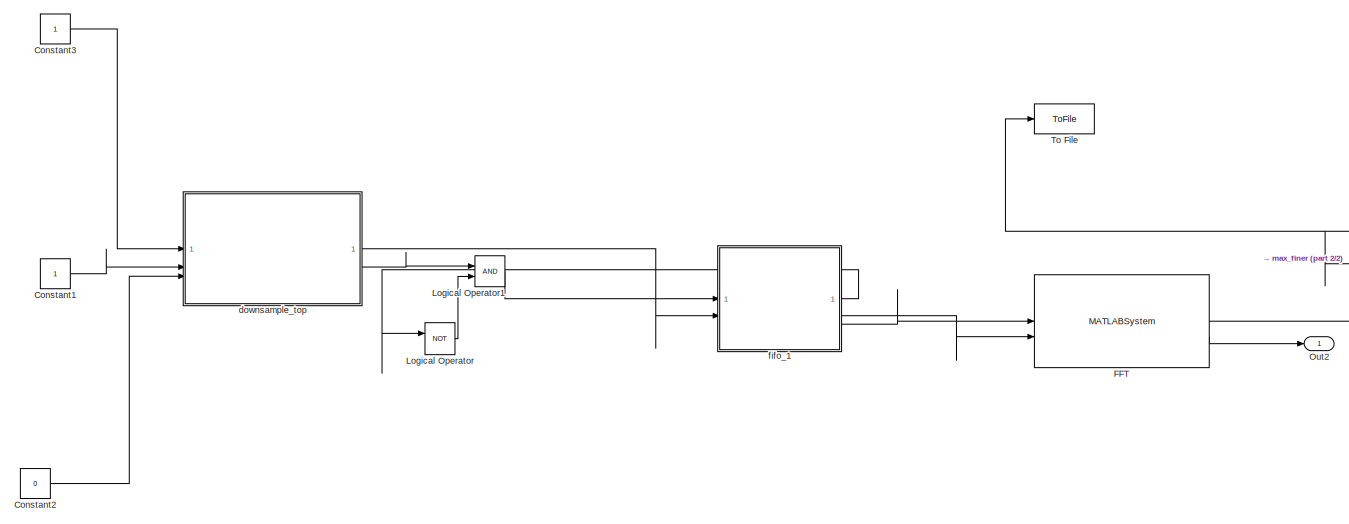
[diagram: root canvas - part 1/2, center side, full height]
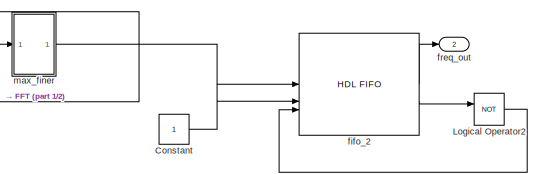
[diagram: root canvas - part 2/2, middle right region]
MODEL slx_ec16cb9e6ccb
KIND model
CONFIG AbsTol = auto
CONFIG EnableMultiTasking = off
CONFIG FixedStep = auto
CONFIG InitFcn = FFTLength = 2^9;\nFs = 1*2e6;\nFrameSize = 8;\nValidPattern = [1, 0];
CONFIG MaxStep = auto
CONFIG MinStep = auto
CONFIG RelTol = 1e-3
CONFIG SampleTimeConstraint = Unconstrained
CONFIG SolverName = FixedStepDiscrete
CONFIG StartTime = 0.0
CONFIG StopTime = 48*FFTLength/FrameSize
BLOCK [Constant] Constant
  OutDataTypeStr = boolean
  SampleTime = 8
BLOCK [Constant] Constant1
  OutDataTypeStr = boolean
  SampleTime = -1
BLOCK [Constant] Constant2
  OutDataTypeStr = boolean
  SampleTime = -1
  Value = 0
BLOCK [Constant] Constant3
  OutDataTypeStr = uint16
  SampleTime = 1
BLOCK [MATLABSystem] FFT
  Architecture = Streaming Radix 2^2
  BitReversedInput = off
  BitReversedOutput = off
  ComplexMultiplication = Use 4 multipliers and 2 adders
  EndOutputPort = off
  FFTLength = 16
  LibrarySourceBlock = dsphdlxfrm2/FFT
  MaskCapabilities = dsphdlmaskedcaps(gcbh)
  MaskDisplay = disp(['FFT' char(10) 'Latency = 34']);\nport_label('input',1,'data');\nport_label('input',2,'valid');\nport_label('output',1,'data');\nport_label('output',2,'valid');
  MaskType = FFT
  Normalize = off
  ResetInputPort = off
  RoundingMethod = Floor
  SimulateUsing = Code generation
  StartOutputPort = off
  System = dsphdl.FFT
BLOCK [Logic] Logical Operator
  AllPortsSameDT = off
  Operator = NOT
  OutDataTypeStr = boolean
BLOCK [Logic] Logical Operator1
  AllPortsSameDT = off
  OutDataTypeStr = boolean
BLOCK [Logic] Logical Operator2
  AllPortsSameDT = off
  IconShape = distinctive
  Operator = NOT
  OutDataTypeStr = boolean
BLOCK [Outport] Out2
  VectorParamsAs1DForOutWhenUnconnected = off
BLOCK [ToFile] To File
  SaveFormat = Timeseries
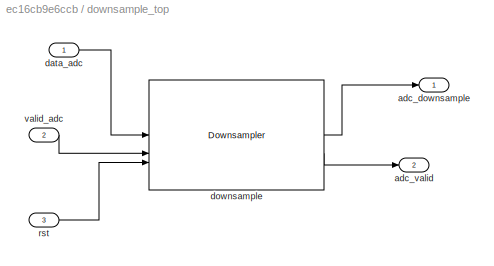
BLOCK [SubSystem] downsample_top
BLOCK [Outport] downsample_top/adc_downsample
  OutDataTypeStr = uint16
  VectorParamsAs1DForOutWhenUnconnected = off
BLOCK [Outport] downsample_top/adc_valid
  OutDataTypeStr = boolean
  Port = 2
  VectorParamsAs1DForOutWhenUnconnected = off
BLOCK [Inport] downsample_top/data_adc
  OutDataTypeStr = uint16
BLOCK [Reference] downsample_top/downsample  REF=dsphdlsigops2/Downsampler
  SourceBlock = dsphdlsigops2/Downsampler
  SourceType = Downsampler
BLOCK [Inport] downsample_top/rst
  OutDataTypeStr = boolean
  Port = 3
BLOCK [Inport] downsample_top/valid_adc
  OutDataTypeStr = boolean
  Port = 2
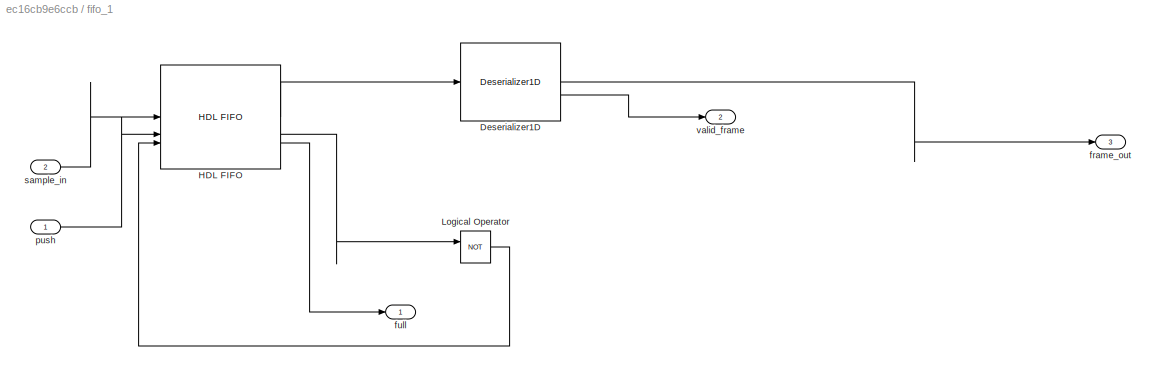
BLOCK [SubSystem] fifo_1
BLOCK [Reference] fifo_1/Deserializer1D  REF=hdlsllib/HDL Operations/Deserializer1D
  SourceBlock = hdlsllib/HDL Operations/Deserializer1D
  SourceType = Deserializer1D
BLOCK [Reference] fifo_1/HDL FIFO  REF=hdlsllib/HDL RAMs/HDL FIFO
  SourceBlock = hdlsllib/HDL RAMs/HDL FIFO
  SourceType = HDL_FIFO
BLOCK [Logic] fifo_1/Logical Operator
  AllPortsSameDT = off
  IconShape = distinctive
  Operator = NOT
  OutDataTypeStr = boolean
BLOCK [Outport] fifo_1/frame_out
  Port = 3
  VectorParamsAs1DForOutWhenUnconnected = off
BLOCK [Outport] fifo_1/full
  OutDataTypeStr = boolean
  VectorParamsAs1DForOutWhenUnconnected = off
BLOCK [Inport] fifo_1/push
  OutDataTypeStr = boolean
BLOCK [Inport] fifo_1/sample_in
  OutDataTypeStr = uint16
  Port = 2
BLOCK [Outport] fifo_1/valid_frame
  Port = 2
  VectorParamsAs1DForOutWhenUnconnected = off
BLOCK [Reference] fifo_2  REF=hdlsllib/HDL RAMs/HDL FIFO
  SourceBlock = hdlsllib/HDL RAMs/HDL FIFO
  SourceType = HDL_FIFO
BLOCK [Outport] freq_out
  Port = 2
  VectorParamsAs1DForOutWhenUnconnected = off
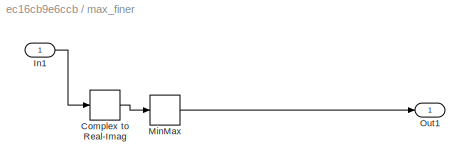
BLOCK [SubSystem] max_finer
BLOCK [ComplexToRealImag] max_finer/Complex to Real-Imag
  Output = Real
BLOCK [Inport] max_finer/In1
BLOCK [MinMax] max_finer/MinMax
  Function = max
  OutDataTypeStr = uint16
BLOCK [Outport] max_finer/Out1
LINE Constant1:1 -> downsample_top:2
LINE Constant2:1 -> downsample_top:3
LINE Constant3:1 -> downsample_top:1
LINE Constant:1 -> fifo_2:2
NET FFT:1 -> To File:1, max_finer:1
LINE FFT:2 -> Out2:1
LINE Logical Operator1:1 -> fifo_1:1
LINE Logical Operator2:1 -> fifo_2:3
LINE Logical Operator:1 -> Logical Operator1:2
LINE downsample_top/data_adc:1 -> downsample_top/downsample:1
LINE downsample_top/downsample:1 -> downsample_top/adc_downsample:1
LINE downsample_top/downsample:2 -> downsample_top/adc_valid:1
LINE downsample_top/rst:1 -> downsample_top/downsample:3
LINE downsample_top/valid_adc:1 -> downsample_top/downsample:2
LINE downsample_top:1 -> fifo_1:2
LINE downsample_top:2 -> Logical Operator1:1
LINE fifo_1/Deserializer1D:1 -> fifo_1/frame_out:1
LINE fifo_1/Deserializer1D:2 -> fifo_1/valid_frame:1
LINE fifo_1/HDL FIFO:1 -> fifo_1/Deserializer1D:1
LINE fifo_1/HDL FIFO:2 -> fifo_1/Logical Operator:1
LINE fifo_1/HDL FIFO:3 -> fifo_1/full:1
LINE fifo_1/Logical Operator:1 -> fifo_1/HDL FIFO:3
LINE fifo_1/push:1 -> fifo_1/HDL FIFO:2
LINE fifo_1/sample_in:1 -> fifo_1/HDL FIFO:1
LINE fifo_1:1 -> Logical Operator:1
LINE fifo_1:2 -> FFT:2
LINE fifo_1:3 -> FFT:1
LINE fifo_2:1 -> freq_out:1
LINE fifo_2:2 -> Logical Operator2:1
LINE max_finer/Complex to Real-Imag:1 -> max_finer/MinMax:1
LINE max_finer/In1:1 -> max_finer/Complex to Real-Imag:1
LINE max_finer/MinMax:1 -> max_finer/Out1:1
LINE max_finer:1 -> fifo_2:1
note: NET lines group one-source signal fan-out (src -> all destinations, sorted); 1:1 wires keep LINE
